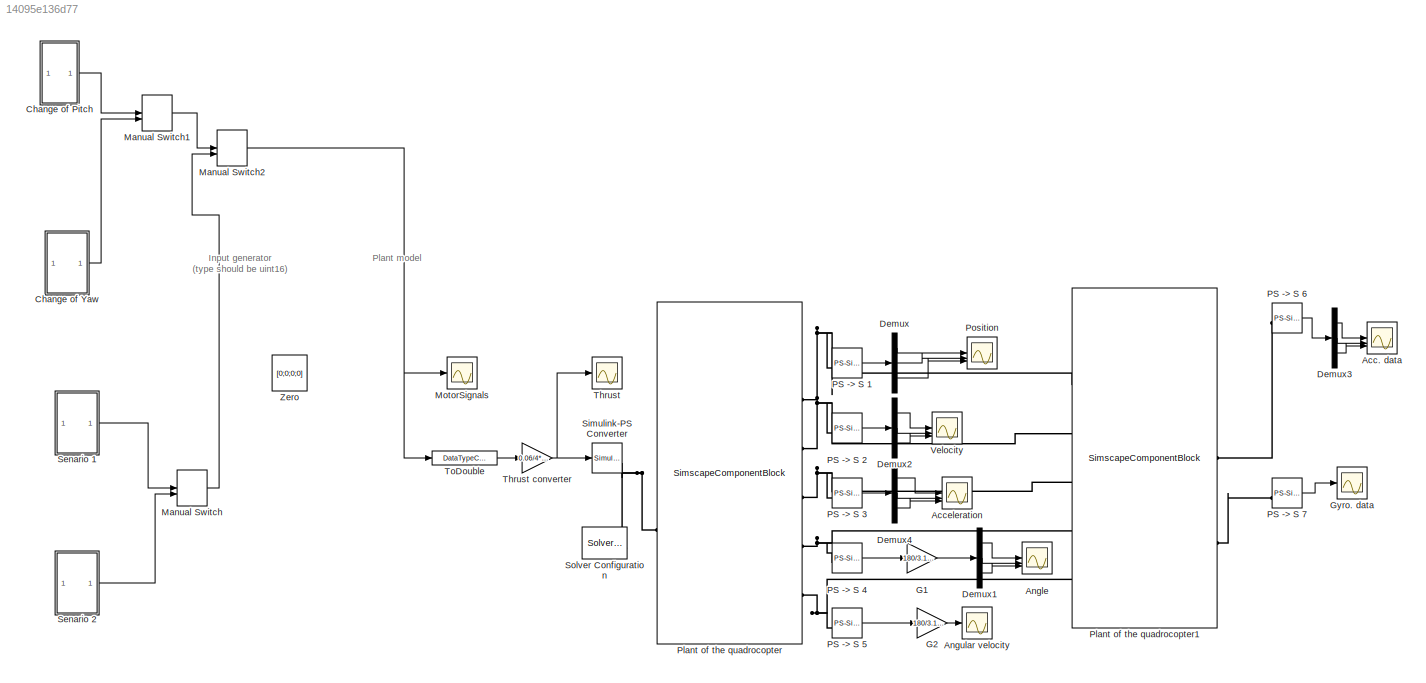
MODEL slx_14095e136d77
KIND model
CONFIG AbsTol = 1e-3
CONFIG EnableMultiTasking = off
CONFIG FixedStep = 1/100
CONFIG MaxStep = auto
CONFIG MinStep = auto
CONFIG RelTol = 1e-3
CONFIG SampleTimeConstraint = Unconstrained
CONFIG SolverName = FixedStepAuto
CONFIG StartTime = 0.0
CONFIG StopTime = 20
WORKSPACE source: external: MATLAB File  (data not in archive)
BLOCK [Scope] Acc. data
  Floating = off
  NumInputPorts = 3
  ScopeSpecificationString = Simulink.scopes.TimeScopeBlockCfg('CurrentConfiguration', extmgr.ConfigurationSet(extmgr.Configuration('Core','General UI',true),extmgr.Configuration('Core','Source UI',true),extmgr.Configuration('Sources','WiredSimulink',true,'DataLoggingVariableName','ScopeData1'),extmgr.Configuration('Visuals','Time Domain',true,'SerializedDisplays',{struct('MinYLimReal','-0.94258','MaxYLimReal','1.14267','YLab...<+2805ch>
BLOCK [Scope] Acceleration
  Floating = off
  NumInputPorts = 3
  ScopeSpecificationString = Simulink.scopes.TimeScopeBlockCfg('CurrentConfiguration', extmgr.ConfigurationSet(extmgr.Configuration('Core','General UI',true),extmgr.Configuration('Core','Source UI',true),extmgr.Configuration('Sources','WiredSimulink',true,'DataLoggingVariableName','ScopeData2','DataLoggingLimitDataPoints',true,'DataLoggingSaveFormat','Array','DataLoggingDecimation','1','DataLoggingDecimateData',true),extmgr.C...<+3377ch>
BLOCK [Scope] Angle
  Floating = off
  NumInputPorts = 3
  ScopeSpecificationString = Simulink.scopes.TimeScopeBlockCfg('CurrentConfiguration', extmgr.ConfigurationSet(extmgr.Configuration('Core','General UI',true),extmgr.Configuration('Core','Source UI',true),extmgr.Configuration('Sources','WiredSimulink',true,'DataLoggingVariableName','ScopeData3','DataLoggingLimitDataPoints',true,'DataLoggingSaveFormat','Array','DataLoggingDecimation','1','DataLoggingDecimateData',true),extmgr.C...<+2953ch>
BLOCK [Scope] Angular velocity
  Floating = off
  NumInputPorts = 1
  ScopeSpecificationString = C++SS(StrPVP('SaveName','ScopeData4'),StrPVP('LimitDataPoints','on'),StrPVP('DataFormat','Array'),StrPVP('Decimation','1'),StrPVP('BlockParamSampleInput','off'))
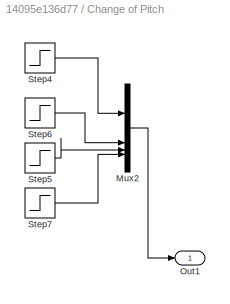
BLOCK [SubSystem] Change of Pitch  
BLOCK [Mux] Change of Pitch  /Mux2
  DisplayOption = bar
BLOCK [Outport] Change of Pitch  /Out1
BLOCK [Step] Change of Pitch  /Step4
  After = 1000
  SampleTime = 0
  Time = 5
BLOCK [Step] Change of Pitch  /Step5
  After = 0
  Before = 1000
  SampleTime = 0
  Time = 5
BLOCK [Step] Change of Pitch  /Step6
  After = 0
  Before = 1000
  SampleTime = 0
  Time = 5
BLOCK [Step] Change of Pitch  /Step7
  After = 1000
  SampleTime = 0
  Time = 5
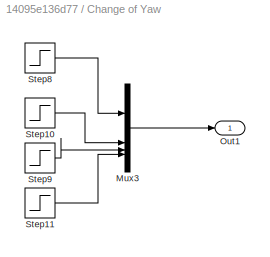
BLOCK [SubSystem] Change of Yaw
BLOCK [Mux] Change of Yaw/Mux3
  DisplayOption = bar
BLOCK [Outport] Change of Yaw/Out1
BLOCK [Step] Change of Yaw/Step10
  After = 0
  Before = 1000
  SampleTime = 0
  Time = 5
BLOCK [Step] Change of Yaw/Step11
  After = 0
  Before = 1000
  SampleTime = 0
  Time = 5
BLOCK [Step] Change of Yaw/Step8
  After = 1000
  SampleTime = 0
  Time = 5
BLOCK [Step] Change of Yaw/Step9
  After = 1000
  SampleTime = 0
  Time = 5
BLOCK [Demux] Demux
  Outputs = 3
BLOCK [Demux] Demux1
  Outputs = 3
BLOCK [Demux] Demux2
  Outputs = 3
BLOCK [Demux] Demux3
  Outputs = 3
BLOCK [Demux] Demux4
  Outputs = 3
BLOCK [Gain] G1
  Gain = 180/3.141592
BLOCK [Gain] G2
  Gain = 180/3.141592
BLOCK [Scope] Gyro. data
  Floating = off
  NumInputPorts = 1
  ScopeSpecificationString = Simulink.scopes.TimeScopeBlockCfg('CurrentConfiguration', extmgr.ConfigurationSet(extmgr.Configuration('Core','General UI',true),extmgr.Configuration('Core','Source UI',true),extmgr.Configuration('Sources','WiredSimulink',true,'DataLoggingVariableName','ScopeData5','DataLoggingLimitDataPoints',true,'DataLoggingSaveFormat','Array','DataLoggingDecimation','1','DataLoggingDecimateData',true),extmgr.C...<+165ch>
BLOCK [ManualSwitch] Manual Switch
BLOCK [ManualSwitch] Manual Switch1
  CurrentSetting = 0
BLOCK [ManualSwitch] Manual Switch2
BLOCK [Scope] MotorSignals
  Floating = off
  NumInputPorts = 1
  ScopeSpecificationString = Simulink.scopes.TimeScopeBlockCfg('CurrentConfiguration', extmgr.ConfigurationSet(extmgr.Configuration('Core','General UI',true),extmgr.Configuration('Core','Source UI',true),extmgr.Configuration('Sources','WiredSimulink',true,'DataLoggingVariableName','ScopeData6','DataLoggingLimitDataPoints',true,'DataLoggingSaveFormat','Array','DataLoggingDecimation','1','DataLoggingDecimateData',true),extmgr.C...<+1587ch>
BLOCK [Reference] PS -> S 1  REF=nesl_utility/PS-Simulink
Converter
  SourceBlock = nesl_utility/PS-Simulink\nConverter
  SourceType = PS-Simulink\nConverter
BLOCK [Reference] PS -> S 2  REF=nesl_utility/PS-Simulink
Converter
  SourceBlock = nesl_utility/PS-Simulink\nConverter
  SourceType = PS-Simulink\nConverter
BLOCK [Reference] PS -> S 3  REF=nesl_utility/PS-Simulink
Converter
  SourceBlock = nesl_utility/PS-Simulink\nConverter
  SourceType = PS-Simulink\nConverter
BLOCK [Reference] PS -> S 4  REF=nesl_utility/PS-Simulink
Converter
  SourceBlock = nesl_utility/PS-Simulink\nConverter
  SourceType = PS-Simulink\nConverter
BLOCK [Reference] PS -> S 5  REF=nesl_utility/PS-Simulink
Converter
  SourceBlock = nesl_utility/PS-Simulink\nConverter
  SourceType = PS-Simulink\nConverter
BLOCK [Reference] PS -> S 6  REF=nesl_utility/PS-Simulink
Converter
  SourceBlock = nesl_utility/PS-Simulink\nConverter
  SourceType = PS-Simulink\nConverter
BLOCK [Reference] PS -> S 7  REF=nesl_utility/PS-Simulink
Converter
  SourceBlock = nesl_utility/PS-Simulink\nConverter
  SourceType = PS-Simulink\nConverter
BLOCK [SimscapeComponentBlock] Plant of the quadrocopter
  ClassName = plant
  ComponentPath = plant
  ComponentVariantNames = plant
  ComponentVariants = plant
  CopyFcn = simscape.engine.sli.internal.componentblockcallback(gcbh,'COPY')
  F = 0.25
  F_conf = compiletime
  F_unit = N*s/m
  InternalSimscapePortConfiguration = {"Bottom":[],"Left":[{"id":"ctrl","label":"Thrust","type":"input"}],"Right":[{"id":"pos","label":"Position","type":"output"},{"id":"v","label":"Velocity","type":"output"},{"id":"a","label":"Acceleration","type":"output"},{"id":"angle","label":"Angle","type":"output"},{"id":"w","label":"Angular velocity","type":"output"}],"Top":[]}
  MaskType = Plant of quadrocopter
  PreCopyFcn = simscape.engine.sli.internal.componentblockcallback(gcbh,'PRECOPY')
  PreDeleteFcn = simscape.engine.sli.internal.componentblockcallback(gcbh,'PREDELETE')
  SchemaVersion = 1
  SourceFile = plant
  c = 0
  c_conf = compiletime
  c_unit = m/s^2
  d = d
  d_conf = compiletime
  d_unit = m
  drag = 2.5383e-11
  drag_conf = compiletime
  drag_unit = N*m*s^2/rad^2
  g = g
  g_conf = compiletime
  g_unit = m/s^2
  lift = 1.9796e-9
  lift_conf = compiletime
  lift_unit = N*s^2/rad^2
  m = m
  m_conf = compiletime
  m_unit = kg
BLOCK [SimscapeComponentBlock] Plant of the quadrocopter1
  ClassName = sensors
  ComponentPath = sensors
  ComponentVariantNames = sensors
  ComponentVariants = sensors
  CopyFcn = simscape.engine.sli.internal.componentblockcallback(gcbh,'COPY')
  InternalSimscapePortConfiguration = {"Bottom":[],"Left":[{"id":"pos","label":"Position","type":"input"},{"id":"v","label":"Velocity","type":"input"},{"id":"a","label":"Acceleration","type":"input"},{"id":"angle","label":"Angle","type":"input"},{"id":"w","label":"Angular velocity","type":"input"}],"Right":[{"id":"acc","label":"Accelerometer","type":"output"},{"id":"gyro","label":"Gyroscope","type":"output"}],"Top":[]}
  MaskType = Plant of quadrocopter
  PreCopyFcn = simscape.engine.sli.internal.componentblockcallback(gcbh,'PRECOPY')
  PreDeleteFcn = simscape.engine.sli.internal.componentblockcallback(gcbh,'PREDELETE')
  SchemaVersion = 1
  SourceFile = sensors
  b = lift
  b_conf = compiletime
  b_unit = 1
  d = d
  d_conf = compiletime
  d_unit = m
  g = g
  g_conf = compiletime
  g_unit = m/s^2
  k = drag
  k_conf = compiletime
  k_unit = km
  m = m
  m_conf = compiletime
  m_unit = kg
BLOCK [Scope] Position
  Floating = off
  NumInputPorts = 3
  ScopeSpecificationString = Simulink.scopes.TimeScopeBlockCfg('CurrentConfiguration', extmgr.ConfigurationSet(extmgr.Configuration('Core','General UI',true),extmgr.Configuration('Core','Source UI',true),extmgr.Configuration('Sources','WiredSimulink',true,'DataLoggingVariableName','ScopeData7'),extmgr.Configuration('Visuals','Time Domain',true,'SerializedDisplays',{struct('MinYLimReal','-1.00000','MaxYLimReal','1.00000','YLab...<+2872ch>
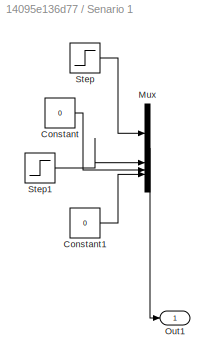
BLOCK [SubSystem] Senario 1
BLOCK [Constant] Senario 1/Constant
  Value = 0
BLOCK [Constant] Senario 1/Constant1
  Value = 0
BLOCK [Mux] Senario 1/Mux
  DisplayOption = bar
BLOCK [Outport] Senario 1/Out1
BLOCK [Step] Senario 1/Step
  After = 10
  SampleTime = 0
  Time = 4
BLOCK [Step] Senario 1/Step1
  After = 10
  SampleTime = 0
  Time = 4
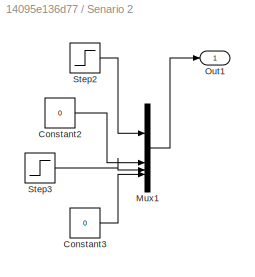
BLOCK [SubSystem] Senario 2
BLOCK [Constant] Senario 2/Constant2
  Value = 0
BLOCK [Constant] Senario 2/Constant3
  Value = 0
BLOCK [Mux] Senario 2/Mux1
  DisplayOption = bar
BLOCK [Outport] Senario 2/Out1
BLOCK [Step] Senario 2/Step2
  After = 1000
  SampleTime = 0
  Time = 4
BLOCK [Step] Senario 2/Step3
  After = 2000
  SampleTime = 0
  Time = 6
BLOCK [Reference] Simulink-PS Converter  REF=nesl_utility/Simulink-PS
Converter
  SourceBlock = nesl_utility/Simulink-PS\nConverter
  SourceType = Simulink-PS\nConverter
BLOCK [Reference] Solver Configuration  REF=nesl_utility/Solver
Configuration
  SourceBlock = nesl_utility/Solver\nConfiguration
  SourceType = Solver\nConfiguration
BLOCK [Scope] Thrust
  Floating = off
  NumInputPorts = 1
  ScopeSpecificationString = Simulink.scopes.TimeScopeBlockCfg('CurrentConfiguration', extmgr.ConfigurationSet(extmgr.Configuration('Core','General UI',true),extmgr.Configuration('Core','Source UI',true),extmgr.Configuration('Sources','WiredSimulink',true,'DataLoggingVariableName','ScopeData8','DataLoggingLimitDataPoints',true,'DataLoggingSaveFormat','Array','DataLoggingDecimation','1','DataLoggingDecimateData',true),extmgr.C...<+1714ch>
BLOCK [Gain] Thrust converter
  Gain = 0.06/4*g/65536
BLOCK [DataTypeConversion] ToDouble
  OutDataTypeStr = double
  RndMeth = Round
BLOCK [Scope] Velocity
  Floating = off
  NumInputPorts = 3
  ScopeSpecificationString = Simulink.scopes.TimeScopeBlockCfg('CurrentConfiguration', extmgr.ConfigurationSet(extmgr.Configuration('Core','General UI',true),extmgr.Configuration('Core','Source UI',true),extmgr.Configuration('Sources','WiredSimulink',true,'DataLoggingLimitDataPoints',true,'DataLoggingSaveFormat','Array','DataLoggingDecimation','1','DataLoggingDecimateData',true),extmgr.Configuration('Visuals','Time Domain',tr...<+2755ch>
BLOCK [Constant] Zero
  Commented = on
  OutDataTypeStr = uint16
  Value = [0;0;0;0]
  VectorParams1D = off
ANNOTATION (root): Input generator (type should be uint16)
ANNOTATION (root): Plant model
LINE Change of Pitch  /Mux2:1 -> Change of Pitch  /Out1:1
LINE Change of Pitch  /Step4:1 -> Change of Pitch  /Mux2:1
LINE Change of Pitch  /Step5:1 -> Change of Pitch  /Mux2:3
LINE Change of Pitch  /Step6:1 -> Change of Pitch  /Mux2:2
LINE Change of Pitch  /Step7:1 -> Change of Pitch  /Mux2:4
LINE Change of Pitch  :1 -> Manual Switch1:1
LINE Change of Yaw/Mux3:1 -> Change of Yaw/Out1:1
LINE Change of Yaw/Step10:1 -> Change of Yaw/Mux3:2
LINE Change of Yaw/Step11:1 -> Change of Yaw/Mux3:4
LINE Change of Yaw/Step8:1 -> Change of Yaw/Mux3:1
LINE Change of Yaw/Step9:1 -> Change of Yaw/Mux3:3
LINE Change of Yaw:1 -> Manual Switch1:2
LINE Demux1:1 -> Angle:1
LINE Demux1:2 -> Angle:2
LINE Demux1:3 -> Angle:3
LINE Demux2:1 -> Velocity:1
LINE Demux2:2 -> Velocity:2
LINE Demux2:3 -> Velocity:3
LINE Demux3:1 -> Acc. data:1
LINE Demux3:2 -> Acc. data:2
LINE Demux3:3 -> Acc. data:3
LINE Demux4:1 -> Acceleration:1
LINE Demux4:2 -> Acceleration:2
LINE Demux4:3 -> Acceleration:3
LINE Demux:1 -> Position:1
LINE Demux:2 -> Position:2
LINE Demux:3 -> Position:3
LINE G1:1 -> Demux1:1
LINE G2:1 -> Angular velocity:1
LINE Manual Switch1:1 -> Manual Switch2:1
NET Manual Switch2:1 -> MotorSignals:1, ToDouble:1
LINE Manual Switch:1 -> Manual Switch2:2
LINE PS -> S 1:1 -> Demux:1
LINE PS -> S 2:1 -> Demux2:1
LINE PS -> S 3:1 -> Demux4:1
LINE PS -> S 4:1 -> G1:1
LINE PS -> S 5:1 -> G2:1
LINE PS -> S 6:1 -> Demux3:1
LINE PS -> S 7:1 -> Gyro. data:1
LINE Senario 1/Constant1:1 -> Senario 1/Mux:4
LINE Senario 1/Constant:1 -> Senario 1/Mux:3
LINE Senario 1/Mux:1 -> Senario 1/Out1:1
LINE Senario 1/Step1:1 -> Senario 1/Mux:2
LINE Senario 1/Step:1 -> Senario 1/Mux:1
LINE Senario 1:1 -> Manual Switch:1
LINE Senario 2/Constant2:1 -> Senario 2/Mux1:2
LINE Senario 2/Constant3:1 -> Senario 2/Mux1:4
LINE Senario 2/Mux1:1 -> Senario 2/Out1:1
LINE Senario 2/Step2:1 -> Senario 2/Mux1:1
LINE Senario 2/Step3:1 -> Senario 2/Mux1:3
LINE Senario 2:1 -> Manual Switch:2
NET Thrust converter:1 -> Simulink-PS Converter:1, Thrust:1
LINE ToDouble:1 -> Thrust converter:1
PNET net1: PS -> S 1:LConn1 -- Plant of the quadrocopter1:LConn1 -- Plant of the quadrocopter:RConn1
PNET net2: PS -> S 2:LConn1 -- Plant of the quadrocopter1:LConn2 -- Plant of the quadrocopter:RConn2
PNET net3: PS -> S 3:LConn1 -- Plant of the quadrocopter1:LConn3 -- Plant of the quadrocopter:RConn3
PNET net4: PS -> S 4:LConn1 -- Plant of the quadrocopter1:LConn4 -- Plant of the quadrocopter:RConn4
PNET net5: PS -> S 5:LConn1 -- Plant of the quadrocopter1:LConn5 -- Plant of the quadrocopter:RConn5
PLINE PS -> S 6:LConn1 -- Plant of the quadrocopter1:RConn1
PLINE PS -> S 7:LConn1 -- Plant of the quadrocopter1:RConn2
PNET net6: Plant of the quadrocopter:LConn1 -- Simulink-PS Converter:RConn1 -- Solver Configuration:RConn1
note: NET lines group one-source signal fan-out (src -> all destinations, sorted); 1:1 wires keep LINE; PNET lines group multi-terminal physical nets as a canonical sorted terminal list (undirected conserving connections); 2-terminal nets keep the pairwise PLINE form
